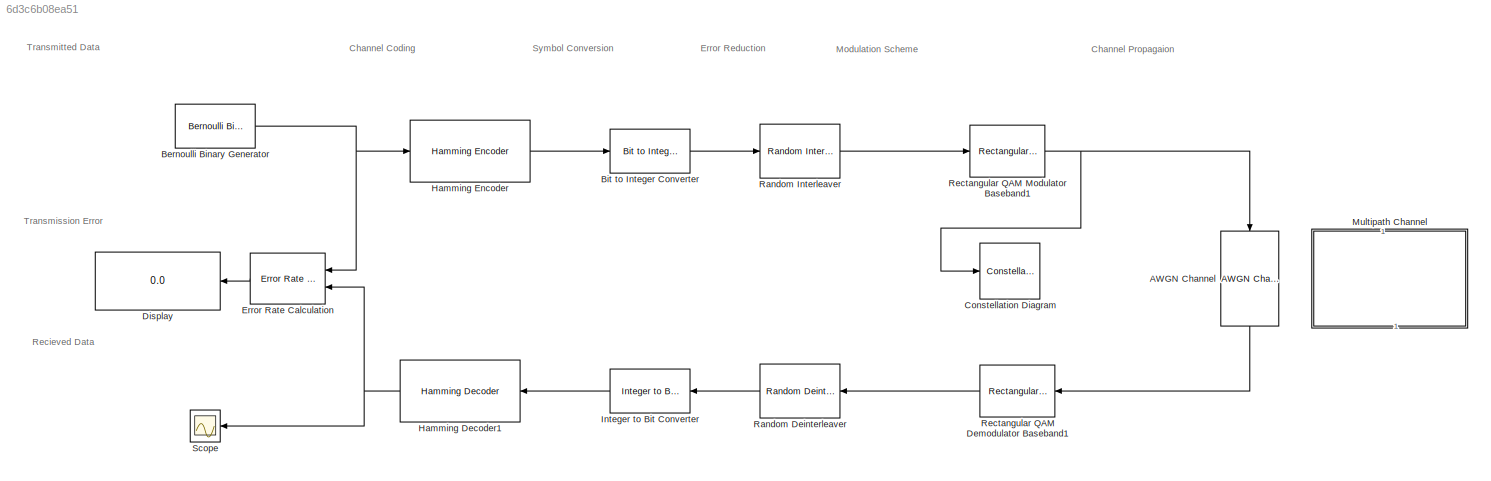
MODEL slx_6d3c6b08ea51
KIND model
CONFIG AbsTol = auto
CONFIG EnableMultiTasking = off
CONFIG FixedStep = auto
CONFIG MaxStep = auto
CONFIG MinStep = auto
CONFIG RelTol = 1e-3
CONFIG SampleTimeConstraint = Unconstrained
CONFIG SolverName = VariableStepAuto
CONFIG StartTime = 0.0
CONFIG StopTime = 50
BLOCK [Reference] AWGN Channel  REF=commchan3/AWGN
Channel
  NameLocation = left
  Ports = [1, 1]
  SourceBlock = commchan3/AWGN\nChannel
  SourceProductBaseCode = CM
  SourceType = AWGN Channel
  UserDataPersistent = on
BLOCK [Reference] Bernoulli Binary Generator  REF=commrandsrc3/Bernoulli Binary
Generator
  Ports = [0, 1]
  SourceBlock = commrandsrc3/Bernoulli Binary\nGenerator
  SourceProductBaseCode = CM
  SourceType = Bernoulli Binary Generator
BLOCK [Reference] Bit to Integer Converter  REF=commutil2/Bit to Integer
Converter
  Ports = [1, 1]
  SourceBlock = commutil2/Bit to Integer\nConverter
  SourceProductBaseCode = CM
  SourceType = Bit to Integer Converter
BLOCK [ConstellationDiagram] Constellation Diagram
  Ports = [1]
  ScopeSpecificationString = comm.scopes.ConstellationDiagramBlockCfg('CurrentConfiguration', extmgr.ConfigurationSet(extmgr.Configuration('Core','General UI',true),extmgr.Configuration('Core','Source UI',true),extmgr.Configuration('Sources','WiredSimulink',true),extmgr.Configuration('Sources','SimulinkEvent',false),extmgr.Configuration('Sources','Simulink',false),extmgr.Configuration('Sources','SPTool',false),extmgr.Configur...<+2856ch>
BLOCK [Display] Display
  Decimation = 1
  Format = long
  Ports = [1]
BLOCK [Reference] Error Rate Calculation  REF=commsink2/Error Rate
Calculation
  Ports = [2, 1]
  SourceBlock = commsink2/Error Rate\nCalculation
  SourceProductBaseCode = CM
  SourceType = Error Rate Calculation
BLOCK [Reference] Hamming Decoder1  REF=commblkcod2/Hamming Decoder
  NameLocation = top
  Ports = [1, 1]
  SourceBlock = commblkcod2/Hamming Decoder
  SourceProductBaseCode = CM
  SourceType = Hamming Decoder
BLOCK [Reference] Hamming Encoder  REF=commblkcod2/Hamming Encoder
  Ports = [1, 1]
  SourceBlock = commblkcod2/Hamming Encoder
  SourceProductBaseCode = CM
  SourceType = Hamming Encoder
BLOCK [Reference] Integer to Bit Converter  REF=commutil2/Integer to Bit
Converter
  NameLocation = top
  Ports = [1, 1]
  SourceBlock = commutil2/Integer to Bit\nConverter
  SourceProductBaseCode = CM
  SourceType = Integer to Bit Converter
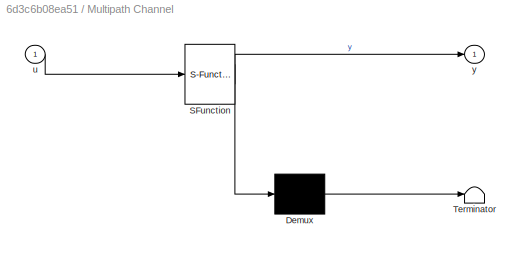
BLOCK [SubSystem] Multipath Channel
  Commented = on
  ErrorFcn = Stateflow.Translate.translate
  NameLocation = right
  PermitHierarchicalResolution = ExplicitOnly
  Ports = [1, 1]
  RequestExecContextInheritance = off
  SFBlockType = MATLAB Function
  TreatAsAtomicUnit = on
BLOCK [Demux] Multipath Channel/ Demux 
  Outputs = 1
  Ports = [1, 1]
BLOCK [S-Function] Multipath Channel/ SFunction 
  EnableBusSupport = on
  FunctionName = sf_sfun
  PortCounts = [1 2]
  Ports = [1, 2]
  SFcnIsStateOwnerBlock = off
  SFunctionDeploymentMode = off
  Tag = Stateflow S-Function 2
BLOCK [Terminator] Multipath Channel/ Terminator 
BLOCK [Inport] Multipath Channel/u
BLOCK [Outport] Multipath Channel/y
BLOCK [Reference] Random Deinterleaver  REF=commblkintrlv2/Random
Deinterleaver
  Ports = [1, 1]
  SourceBlock = commblkintrlv2/Random\nDeinterleaver
  SourceProductBaseCode = CM
  SourceType = Random Deinterleaver
BLOCK [Reference] Random Interleaver  REF=commblkintrlv2/Random
Interleaver
  Ports = [1, 1]
  SourceBlock = commblkintrlv2/Random\nInterleaver
  SourceProductBaseCode = CM
  SourceType = Random Interleaver
BLOCK [Reference] Rectangular QAM Demodulator Baseband1  REF=commdigbbndam3/Rectangular QAM
Demodulator
Baseband
  Ports = [1, 1]
  SourceBlock = commdigbbndam3/Rectangular QAM\nDemodulator\nBaseband
  SourceProductBaseCode = CM
  SourceType = Rectangular QAM Demodulator Baseband
BLOCK [Reference] Rectangular QAM Modulator Baseband1  REF=commdigbbndam3/Rectangular QAM
Modulator
Baseband
  Ports = [1, 1]
  SourceBlock = commdigbbndam3/Rectangular QAM\nModulator\nBaseband
  SourceProductBaseCode = CM
  SourceType = Rectangular QAM Modulator Baseband
BLOCK [Scope] Scope
  Floating = off
  NumInputPorts = 1
  Ports = [1]
  ScopeSpecificationString = Simulink.scopes.TimeScopeBlockCfg('CurrentConfiguration', extmgr.ConfigurationSet(extmgr.Configuration('Core','General UI',true),extmgr.Configuration('Core','Source UI',true),extmgr.Configuration('Sources','WiredSimulink',true,'DataLoggingLimitDataPoints',true,'DataLoggingSaveFormat','Array','DataLoggingDecimation','1','DataLoggingDecimateData',true),extmgr.Configuration('Visuals','Time Domain',tr...<+1521ch>
ANNOTATION (root): Channel Coding
ANNOTATION (root): Channel Propagaion
ANNOTATION (root): Error Reduction
ANNOTATION (root): Modulation Scheme
ANNOTATION (root): Recieved Data
ANNOTATION (root): Symbol Conversion
ANNOTATION (root): Transmission Error
ANNOTATION (root): Transmitted Data
LINE AWGN Channel:1 -> Rectangular QAM Demodulator Baseband1:1
NET Bernoulli Binary Generator:1 -> Error Rate Calculation:1, Hamming Encoder:1
LINE Bit to Integer Converter:1 -> Random Interleaver:1
LINE Error Rate Calculation:1 -> Display:1
NET Hamming Decoder1:1 -> Error Rate Calculation:2, Scope:1
LINE Hamming Encoder:1 -> Bit to Integer Converter:1
LINE Integer to Bit Converter:1 -> Hamming Decoder1:1
LINE Random Deinterleaver:1 -> Integer to Bit Converter:1
LINE Random Interleaver:1 -> Rectangular QAM Modulator Baseband1:1
LINE Rectangular QAM Demodulator Baseband1:1 -> Random Deinterleaver:1
NET Rectangular QAM Modulator Baseband1:1 -> AWGN Channel:1, Constellation Diagram:1
note: NET lines group one-source signal fan-out (src -> all destinations, sorted); 1:1 wires keep LINE
CHART Multipath
Channel states=1 transitions=1
  STATE_LABEL 'eML_blk_kernel()'
  STATE_LABEL 'SCRIPT:\nfunction y = multichannel_revised(u)\n\npersistent isopaths channel\npersistent projector projRadiator beaconPlat hydrophone \npersistent array arrayCollector arrayPlat rx\n\n\n%% Define the Underwater Channel\npropSpeed = 1520;\nchannelDepth = 200;\nOperatingFrequency = 37.5e3; \n\nprf = 1;\npulseWidth = 10e-3;\npulseBandwidth = 1/pulseWidth;\nfs = 2*pulseBandwidth;\n\nif isempty(isopaths)\n    isopaths = ...<+2575ch>'
CHART  states=0 transitions=0
